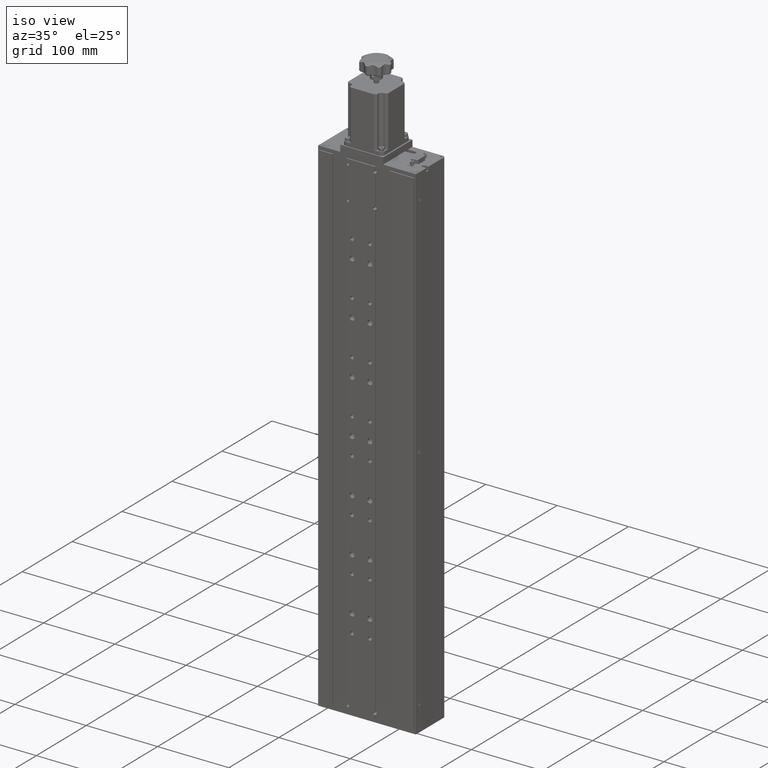
[diagram: clean part render]
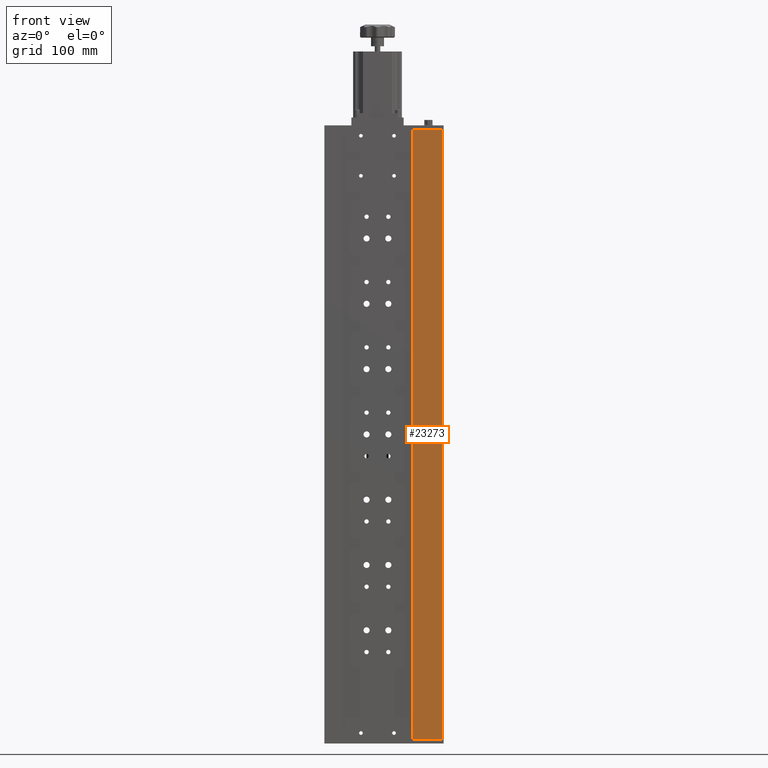
[diagram: tour spotlight — one face highlighted and labeled with its STEP entity id]
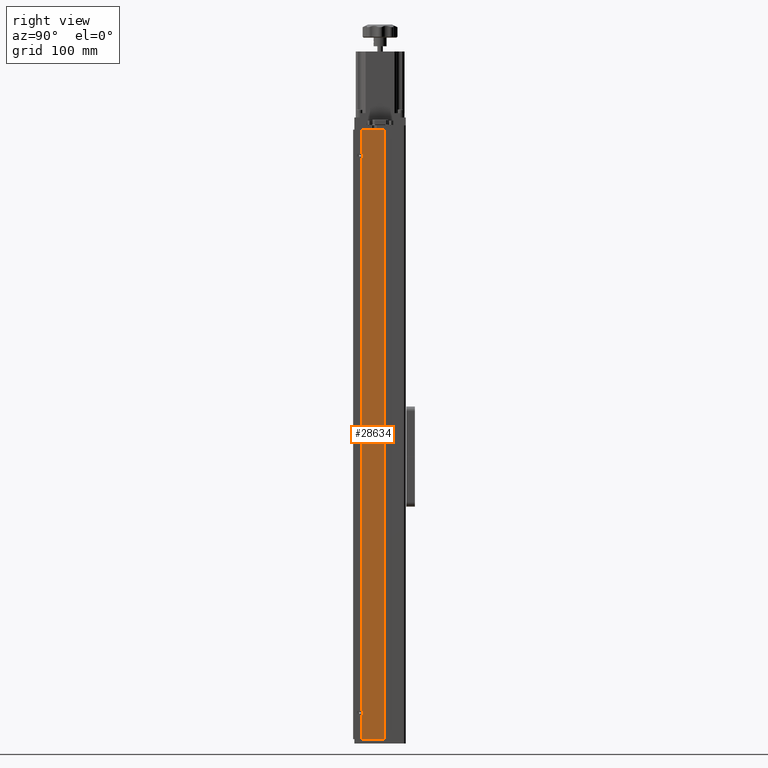
[diagram: tour spotlight — one face highlighted and labeled with its STEP entity id]
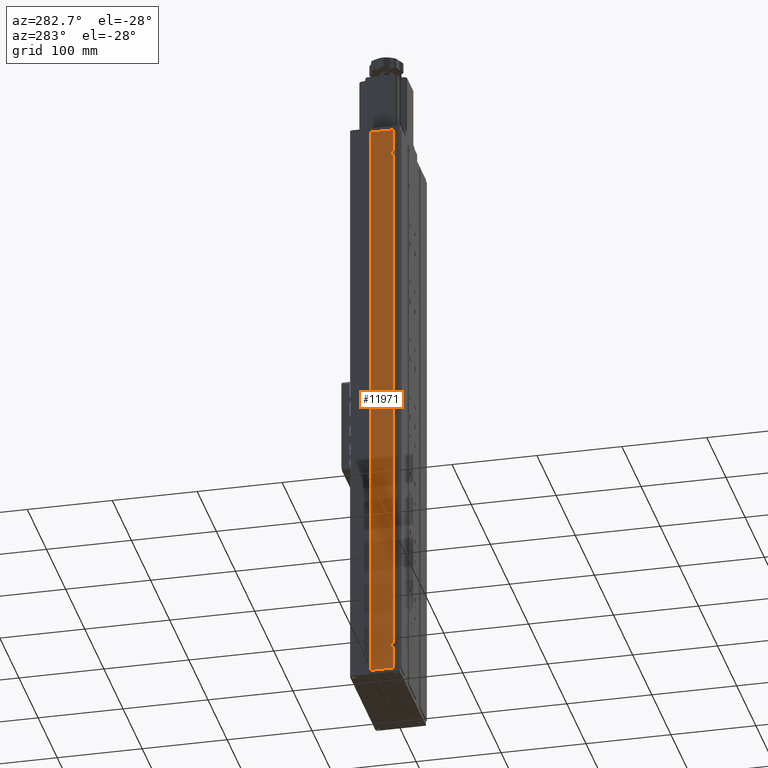
[diagram: tour spotlight — one face highlighted and labeled with its STEP entity id]
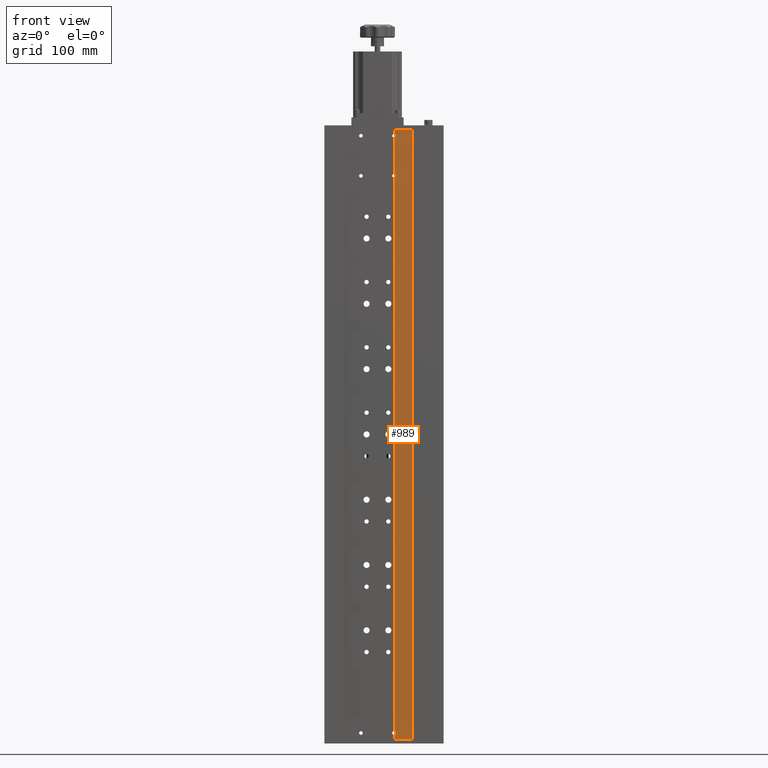
[diagram: tour spotlight — one face highlighted and labeled with its STEP entity id]
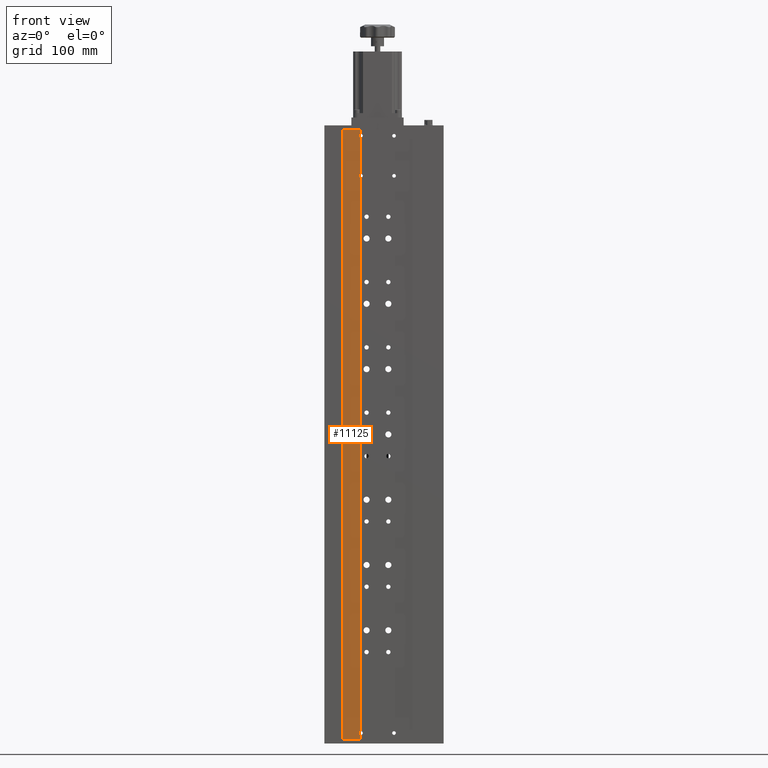
[diagram: tour spotlight — one face highlighted and labeled with its STEP entity id]
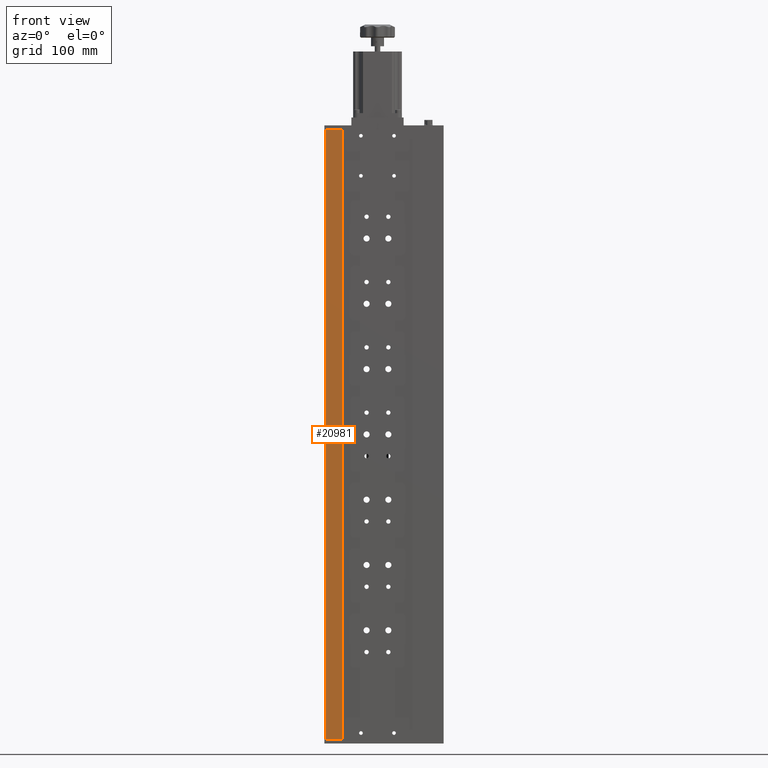
[diagram: tour spotlight — one face highlighted and labeled with its STEP entity id]
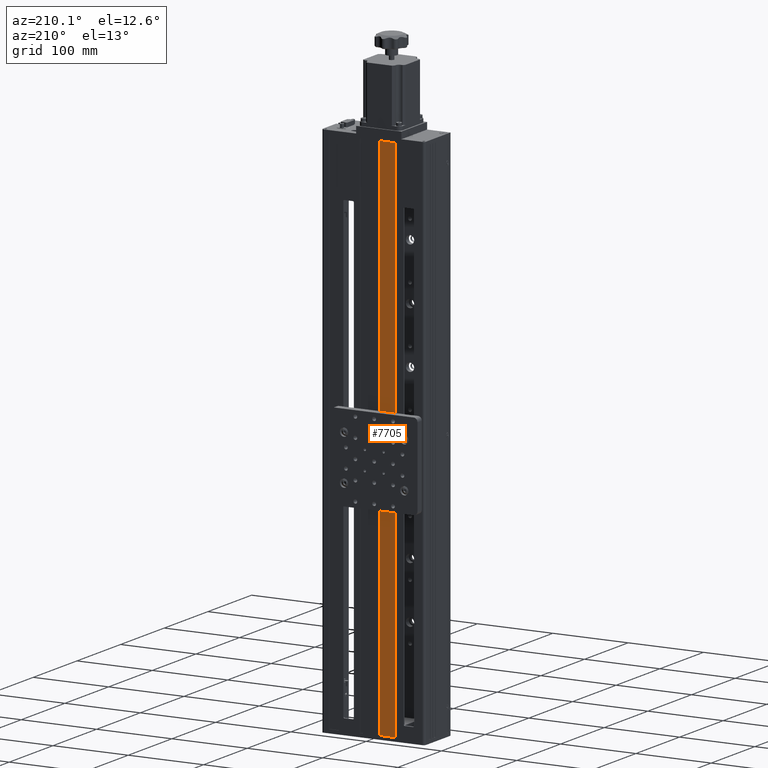
[diagram: tour spotlight — one face highlighted and labeled with its STEP entity id]
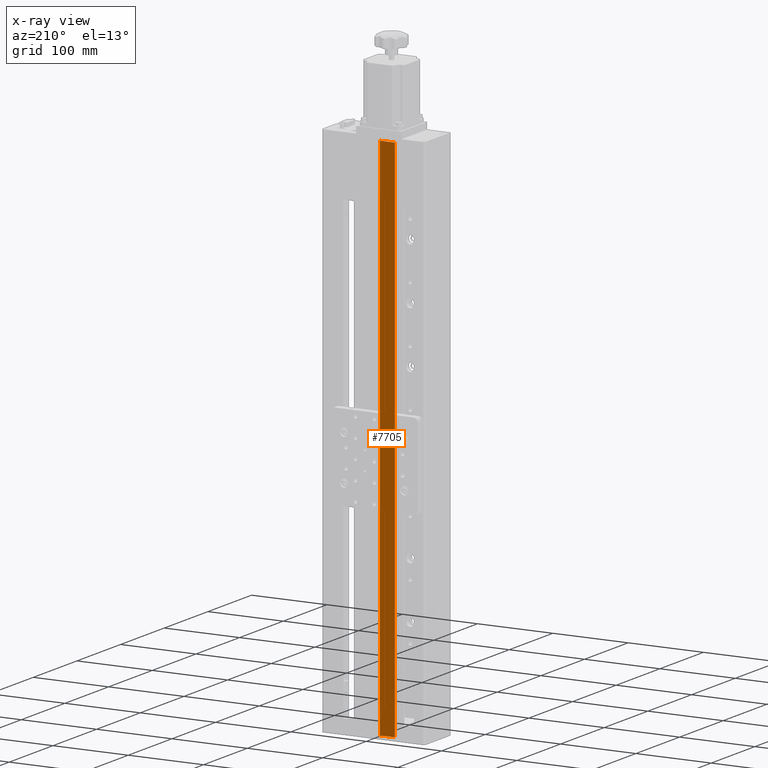
[diagram: x-ray of the same camera — body ghosted, this tour face saturated]
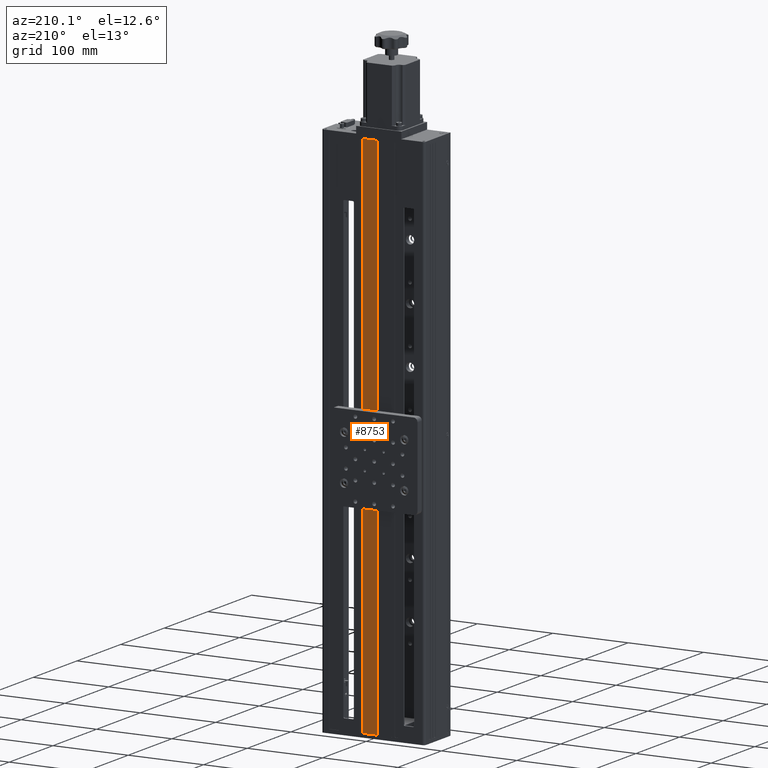
[diagram: tour spotlight — one face highlighted and labeled with its STEP entity id]
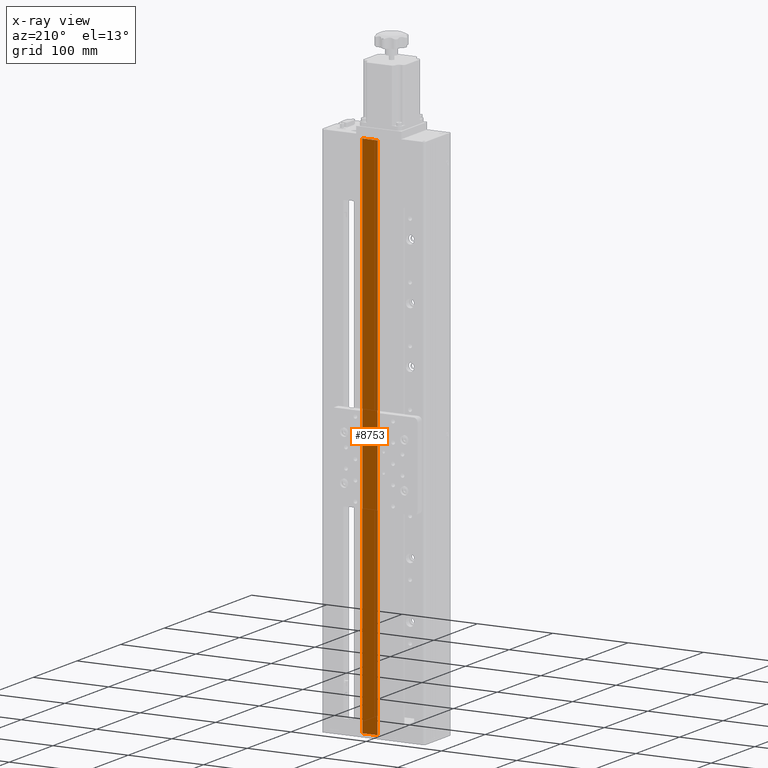
[diagram: x-ray of the same camera — body ghosted, this tour face saturated]
A machine part: a face-by-face anatomy tour. The part has 733 B-rep faces; the first image is the clean iso view, then the 8 largest visible faces are spotlighted one at a time (largest first), each with its STEP entity span.

Face 1 — front view, entity #23273. In plain terms, the highlighted planar face has unit normal (-0, 1, 0).
Definition (entity closure, byte-faithful):
#294 = CARTESIAN_POINT ( 'NONE',  ( -200.6106926832512400, -26.67012639631455100, -598.8342676332768000 ) ) ;
#1209 = CARTESIAN_POINT ( 'NONE',  ( -96.23569268325124400, -26.67012639631455100, 101.1657323667232800 ) ) ;
#3026 = DIRECTION ( 'NONE',  ( 0.0000000000000000000, 0.0000000000000000000, 1.000000000000000000 ) ) ;
#3101 = CARTESIAN_POINT ( 'NONE',  ( -96.23569268325124400, -26.67012639631455100, 101.1657323667232800 ) ) ;
#3279 = ORIENTED_EDGE ( 'NONE', *, *, #39515, .T. ) ;
#5873 = VERTEX_POINT ( 'NONE', #35107 ) ;
#8978 = ORIENTED_EDGE ( 'NONE', *, *, #13129, .T. ) ;
#10865 = DIRECTION ( 'NONE',  ( -1.000000000000000000, -3.029454718961576000E-018, -0.0000000000000000000 ) ) ;
#11520 = FACE_OUTER_BOUND ( 'NONE', #35816, .T. ) ;
#11677 = EDGE_CURVE ( 'NONE', #24877, #28009, #12525, .T. ) ;
#11954 = VECTOR ( 'NONE', #27048, 1000.000000000000000 ) ;
#12172 = VECTOR ( 'NONE', #10865, 1000.000000000000000 ) ;
#12525 = LINE ( 'NONE', #3101, #19999 ) ;
#13129 = EDGE_CURVE ( 'NONE', #5873, #33703, #21290, .T. ) ;
#13610 = ORIENTED_EDGE ( 'NONE', *, *, #11677, .F. ) ;
#15786 = AXIS2_PLACEMENT_3D ( 'NONE', #18965, #41323, #22198 ) ;
#18965 = CARTESIAN_POINT ( 'NONE',  ( -200.6106926832512400, -26.67012639631455100, -598.8342676332768000 ) ) ;
#19733 = EDGE_CURVE ( 'NONE', #5873, #24877, #37459, .T. ) ;
#19999 = VECTOR ( 'NONE', #3026, 1000.000000000000000 ) ;
#20401 = CARTESIAN_POINT ( 'NONE',  ( -200.6106926832512400, -26.67012639631455100, 101.1657323667232800 ) ) ;
#21290 = LINE ( 'NONE', #28534, #37284 ) ;
#21694 = LINE ( 'NONE', #20401, #12172 ) ;
#22198 = DIRECTION ( 'NONE',  ( -1.000000000000000000, -3.029454718961576000E-018, 0.0000000000000000000 ) ) ;
#23273 = ADVANCED_FACE ( 'NONE', ( #11520 ), #38008, .F. ) ;
#23462 = CARTESIAN_POINT ( 'NONE',  ( -96.23569268325124400, -26.67012639631455100, -598.8342676332768000 ) ) ;
#24061 = ORIENTED_EDGE ( 'NONE', *, *, #19733, .F. ) ;
#24877 = VERTEX_POINT ( 'NONE', #23462 ) ;
#27048 = DIRECTION ( 'NONE',  ( -1.000000000000000000, -3.029454718961576000E-018, -0.0000000000000000000 ) ) ;
#28009 = VERTEX_POINT ( 'NONE', #1209 ) ;
#28534 = CARTESIAN_POINT ( 'NONE',  ( -62.23569268325127300, -26.67012639631454700, -598.8342676332768000 ) ) ;
#28663 = DIRECTION ( 'NONE',  ( 0.0000000000000000000, 0.0000000000000000000, 1.000000000000000000 ) ) ;
#33703 = VERTEX_POINT ( 'NONE', #34939 ) ;
#34939 = CARTESIAN_POINT ( 'NONE',  ( -62.23569268325124400, -26.67012639631454700, 101.1657323667232800 ) ) ;
#35107 = CARTESIAN_POINT ( 'NONE',  ( -62.23569268325125800, -26.67012639631455100, -598.8342676332768000 ) ) ;
#35816 = EDGE_LOOP ( 'NONE', ( #24061, #8978, #3279, #13610 ) ) ;
#37284 = VECTOR ( 'NONE', #28663, 1000.000000000000000 ) ;
#37459 = LINE ( 'NONE', #294, #11954 ) ;
#38008 = PLANE ( 'NONE',  #15786 ) ;
#39515 = EDGE_CURVE ( 'NONE', #33703, #28009, #21694, .T. ) ;
#41323 = DIRECTION ( 'NONE',  ( -3.029454718961576000E-018, 1.000000000000000000, 0.0000000000000000000 ) ) ;

Face 2 — right view, entity #28634. In plain terms, the highlighted planar face has unit normal (-1, 0, 0).
Definition (entity closure, byte-faithful):
#355 = CARTESIAN_POINT ( 'NONE',  ( -60.23569268325124400, -17.42012639631455800, 101.1657323667232800 ) ) ;
#705 = DIRECTION ( 'NONE',  ( 0.0000000000000000000, 0.0000000000000000000, -1.000000000000000000 ) ) ;
#776 = DIRECTION ( 'NONE',  ( 0.0000000000000000000, 1.000000000000000000, 0.0000000000000000000 ) ) ;
#858 = DIRECTION ( 'NONE',  ( 1.000000000000000000, -0.0000000000000000000, -0.0000000000000000000 ) ) ;
#1002 = CARTESIAN_POINT ( 'NONE',  ( -60.23569268325124400, -18.67012639631463600, 71.16573236672324800 ) ) ;
#1665 = DIRECTION ( 'NONE',  ( 0.0000000000000000000, 1.000000000000000000, 0.0000000000000000000 ) ) ;
#1762 = VERTEX_POINT ( 'NONE', #24570 ) ;
#1858 = CARTESIAN_POINT ( 'NONE',  ( -60.23569268325124400, -17.42012639631457200, -565.9429011743164900 ) ) ;
#2003 = ORIENTED_EDGE ( 'NONE', *, *, #40113, .T. ) ;
#2581 = CARTESIAN_POINT ( 'NONE',  ( -60.23569268325124400, -17.42012639631455800, -571.7256340922368700 ) ) ;
#3218 = EDGE_CURVE ( 'NONE', #25133, #3388, #37111, .T. ) ;
#3368 = CARTESIAN_POINT ( 'NONE',  ( -60.23569268325124400, -17.42012639631455800, -245.9429011743165200 ) ) ;
#3388 = VERTEX_POINT ( 'NONE', #14030 ) ;
#3960 = AXIS2_PLACEMENT_3D ( 'NONE', #29635, #28374, #29075 ) ;
#5153 = CARTESIAN_POINT ( 'NONE',  ( -60.23569268325124400, -17.42012639631455800, 101.1657323667232800 ) ) ;
#6287 = EDGE_CURVE ( 'NONE', #25369, #13494, #24440, .T. ) ;
#6340 = EDGE_CURVE ( 'NONE', #1762, #25133, #23465, .T. ) ;
#6634 = EDGE_CURVE ( 'NONE', #39823, #23825, #21438, .T. ) ;
#6833 = CARTESIAN_POINT ( 'NONE',  ( -60.23569268325124400, -17.42012639631455800, -251.7256340922369300 ) ) ;
#8156 = DIRECTION ( 'NONE',  ( -0.0000000000000000000, -0.0000000000000000000, -1.000000000000000000 ) ) ;
#8308 = DIRECTION ( 'NONE',  ( 1.000000000000000000, -0.0000000000000000000, -0.0000000000000000000 ) ) ;
#8350 = VERTEX_POINT ( 'NONE', #2581 ) ;
#10549 = CARTESIAN_POINT ( 'NONE',  ( -60.23569268325124400, -17.42012639631455400, 68.27436590776308400 ) ) ;
#10611 = CARTESIAN_POINT ( 'NONE',  ( -60.23569268325124400, -17.42012639631455800, -598.8342676332768000 ) ) ;
#11182 = CARTESIAN_POINT ( 'NONE',  ( -60.23569268325124400, -17.42012639631455800, 101.1657323667232800 ) ) ;
#11726 = DIRECTION ( 'NONE',  ( -0.0000000000000000000, -0.0000000000000000000, -1.000000000000000000 ) ) ;
#11822 = EDGE_CURVE ( 'NONE', #39823, #40593, #39969, .T. ) ;
#13111 = ORIENTED_EDGE ( 'NONE', *, *, #21779, .T. ) ;
#13143 = DIRECTION ( 'NONE',  ( -1.000000000000000000, 0.0000000000000000000, 0.0000000000000000000 ) ) ;
#13492 = VECTOR ( 'NONE', #8156, 1000.000000000000000 ) ;
#13494 = VERTEX_POINT ( 'NONE', #26941 ) ;
#14030 = CARTESIAN_POINT ( 'NONE',  ( -60.23569268325124400, 8.829873603685506100, -598.8342676332768000 ) ) ;
#14497 = FACE_OUTER_BOUND ( 'NONE', #36426, .T. ) ;
#15514 = EDGE_CURVE ( 'NONE', #8350, #40593, #21447, .T. ) ;
#16903 = EDGE_CURVE ( 'NONE', #25369, #23825, #33852, .T. ) ;
#17176 = LINE ( 'NONE', #11182, #40679 ) ;
#17520 = CARTESIAN_POINT ( 'NONE',  ( -60.23569268325124400, -17.42012639631455800, -598.8342676332768000 ) ) ;
#18407 = AXIS2_PLACEMENT_3D ( 'NONE', #1002, #858, #705 ) ;
#19079 = AXIS2_PLACEMENT_3D ( 'NONE', #32269, #13143, #35491 ) ;
#20090 = VECTOR ( 'NONE', #27064, 1000.000000000000000 ) ;
#21438 = CIRCLE ( 'NONE', #3960, 3.149999999999986100 ) ;
#21447 = CIRCLE ( 'NONE', #21627, 3.149999999999986100 ) ;
#21627 = AXIS2_PLACEMENT_3D ( 'NONE', #27487, #8308, #30711 ) ;
#21779 = EDGE_CURVE ( 'NONE', #33913, #3388, #25538, .T. ) ;
#23075 = CARTESIAN_POINT ( 'NONE',  ( -60.23569268325124400, 8.829873603685506100, 101.1657323667232800 ) ) ;
#23465 = LINE ( 'NONE', #355, #30981 ) ;
#23825 = VERTEX_POINT ( 'NONE', #3368 ) ;
#24440 = CIRCLE ( 'NONE', #18407, 3.149999999999999900 ) ;
#24570 = CARTESIAN_POINT ( 'NONE',  ( -60.23569268325124400, -17.42012639631455800, 101.1657323667232800 ) ) ;
#24966 = CARTESIAN_POINT ( 'NONE',  ( -60.23569268325124400, 8.829873603685506100, 101.1657323667232800 ) ) ;
#25133 = VERTEX_POINT ( 'NONE', #24966 ) ;
#25338 = VECTOR ( 'NONE', #40129, 1000.000000000000000 ) ;
#25369 = VERTEX_POINT ( 'NONE', #10549 ) ;
#25538 = LINE ( 'NONE', #17520, #34055 ) ;
#26941 = CARTESIAN_POINT ( 'NONE',  ( -60.23569268325124400, -17.42012639631455800, 74.05709882568339700 ) ) ;
#27064 = DIRECTION ( 'NONE',  ( -0.0000000000000000000, -0.0000000000000000000, -1.000000000000000000 ) ) ;
#27487 = CARTESIAN_POINT ( 'NONE',  ( -60.23569268325124400, -18.67012639631456100, -568.8342676332766800 ) ) ;
#28374 = DIRECTION ( 'NONE',  ( 1.000000000000000000, -0.0000000000000000000, -0.0000000000000000000 ) ) ;
#28506 = ORIENTED_EDGE ( 'NONE', *, *, #15514, .F. ) ;
#28634 = ADVANCED_FACE ( 'NONE', ( #14497 ), #38576, .F. ) ;
#29075 = DIRECTION ( 'NONE',  ( 0.0000000000000000000, 0.0000000000000000000, -1.000000000000000000 ) ) ;
#29635 = CARTESIAN_POINT ( 'NONE',  ( -60.23569268325124400, -18.67012639631456100, -248.8342676332767100 ) ) ;
#29820 = ORIENTED_EDGE ( 'NONE', *, *, #6634, .F. ) ;
#30563 = CARTESIAN_POINT ( 'NONE',  ( -60.23569268325124400, -17.42012639631455800, 101.1657323667232800 ) ) ;
#30615 = DIRECTION ( 'NONE',  ( -0.0000000000000000000, -0.0000000000000000000, -1.000000000000000000 ) ) ;
#30711 = DIRECTION ( 'NONE',  ( 0.0000000000000000000, 0.0000000000000000000, -1.000000000000000000 ) ) ;
#30723 = ORIENTED_EDGE ( 'NONE', *, *, #6287, .F. ) ;
#30981 = VECTOR ( 'NONE', #776, 1000.000000000000000 ) ;
#32269 = CARTESIAN_POINT ( 'NONE',  ( -60.23569268325124400, -17.42012639631455800, 101.1657323667232800 ) ) ;
#32328 = EDGE_CURVE ( 'NONE', #1762, #13494, #17176, .T. ) ;
#33560 = VECTOR ( 'NONE', #11726, 1000.000000000000000 ) ;
#33601 = ORIENTED_EDGE ( 'NONE', *, *, #11822, .T. ) ;
#33852 = LINE ( 'NONE', #5153, #25338 ) ;
#33913 = VERTEX_POINT ( 'NONE', #10611 ) ;
#34055 = VECTOR ( 'NONE', #1665, 1000.000000000000000 ) ;
#34111 = CARTESIAN_POINT ( 'NONE',  ( -60.23569268325124400, -17.42012639631455800, 101.1657323667232800 ) ) ;
#34535 = LINE ( 'NONE', #34111, #33560 ) ;
#35237 = ORIENTED_EDGE ( 'NONE', *, *, #32328, .T. ) ;
#35491 = DIRECTION ( 'NONE',  ( 0.0000000000000000000, 0.0000000000000000000, 1.000000000000000000 ) ) ;
#35718 = ORIENTED_EDGE ( 'NONE', *, *, #6340, .F. ) ;
#36426 = EDGE_LOOP ( 'NONE', ( #33601, #28506, #2003, #13111, #37991, #35718, #35237, #30723, #38298, #29820 ) ) ;
#37111 = LINE ( 'NONE', #23075, #20090 ) ;
#37991 = ORIENTED_EDGE ( 'NONE', *, *, #3218, .F. ) ;
#38298 = ORIENTED_EDGE ( 'NONE', *, *, #16903, .T. ) ;
#38576 = PLANE ( 'NONE',  #19079 ) ;
#39823 = VERTEX_POINT ( 'NONE', #6833 ) ;
#39969 = LINE ( 'NONE', #30563, #13492 ) ;
#40113 = EDGE_CURVE ( 'NONE', #8350, #33913, #34535, .T. ) ;
#40129 = DIRECTION ( 'NONE',  ( -0.0000000000000000000, -0.0000000000000000000, -1.000000000000000000 ) ) ;
#40593 = VERTEX_POINT ( 'NONE', #1858 ) ;
#40679 = VECTOR ( 'NONE', #30615, 1000.000000000000000 ) ;

Face 3 — auxiliary view, entity #11971. In plain terms, the highlighted planar face has unit normal (-1, 0, 0).
Definition (entity closure, byte-faithful):
#440 = EDGE_CURVE ( 'NONE', #18899, #10316, #3173, .T. ) ;
#797 = EDGE_CURVE ( 'NONE', #35476, #28081, #12188, .T. ) ;
#1048 = DIRECTION ( 'NONE',  ( 0.0000000000000000000, 0.0000000000000000000, 1.000000000000000000 ) ) ;
#1086 = AXIS2_PLACEMENT_3D ( 'NONE', #39400, #20229, #1048 ) ;
#1294 = CARTESIAN_POINT ( 'NONE',  ( -197.2356926832512400, -17.42012639631455800, 101.1657323667232800 ) ) ;
#1724 = EDGE_CURVE ( 'NONE', #37724, #10558, #37404, .T. ) ;
#2480 = DIRECTION ( 'NONE',  ( -1.000000000000000000, -0.0000000000000000000, -0.0000000000000000000 ) ) ;
#2747 = VECTOR ( 'NONE', #8879, 1000.000000000000000 ) ;
#2893 = CARTESIAN_POINT ( 'NONE',  ( -197.2356926832513000, -17.42012639631455100, -571.7256340922368700 ) ) ;
#3173 = LINE ( 'NONE', #7150, #11714 ) ;
#3551 = LINE ( 'NONE', #7242, #12086 ) ;
#3856 = ORIENTED_EDGE ( 'NONE', *, *, #40181, .F. ) ;
#4079 = DIRECTION ( 'NONE',  ( -1.000000000000000000, -0.0000000000000000000, -0.0000000000000000000 ) ) ;
#4228 = AXIS2_PLACEMENT_3D ( 'NONE', #15058, #14928, #14644 ) ;
#5051 = VECTOR ( 'NONE', #10555, 1000.000000000000000 ) ;
#5656 = CARTESIAN_POINT ( 'NONE',  ( -197.2356926832512400, -17.42012639631455800, -598.8342676332768000 ) ) ;
#6546 = AXIS2_PLACEMENT_3D ( 'NONE', #21692, #2480, #24861 ) ;
#7150 = CARTESIAN_POINT ( 'NONE',  ( -197.2356926832512400, -17.42012639631455800, 101.1657323667232800 ) ) ;
#7242 = CARTESIAN_POINT ( 'NONE',  ( -197.2356926832512400, -17.42012639631455800, 101.1657323667232800 ) ) ;
#7582 = ORIENTED_EDGE ( 'NONE', *, *, #40664, .F. ) ;
#8018 = VECTOR ( 'NONE', #23258, 1000.000000000000000 ) ;
#8879 = DIRECTION ( 'NONE',  ( 0.0000000000000000000, 1.000000000000000000, 0.0000000000000000000 ) ) ;
#8918 = ORIENTED_EDGE ( 'NONE', *, *, #440, .F. ) ;
#10166 = VERTEX_POINT ( 'NONE', #34925 ) ;
#10316 = VERTEX_POINT ( 'NONE', #31954 ) ;
#10555 = DIRECTION ( 'NONE',  ( -0.0000000000000000000, -0.0000000000000000000, -1.000000000000000000 ) ) ;
#10558 = VERTEX_POINT ( 'NONE', #27662 ) ;
#10921 = DIRECTION ( 'NONE',  ( -0.0000000000000000000, -0.0000000000000000000, -1.000000000000000000 ) ) ;
#11510 = CARTESIAN_POINT ( 'NONE',  ( -197.2356926832513000, -17.42012639631455800, 68.27436590776308400 ) ) ;
#11714 = VECTOR ( 'NONE', #10921, 1000.000000000000000 ) ;
#11820 = EDGE_LOOP ( 'NONE', ( #3856, #30414, #20910, #15433, #32734, #35379, #30143, #41518, #7582, #8918 ) ) ;
#11900 = VECTOR ( 'NONE', #20512, 1000.000000000000000 ) ;
#11971 = ADVANCED_FACE ( 'NONE', ( #19427 ), #21209, .T. ) ;
#12086 = VECTOR ( 'NONE', #26449, 1000.000000000000000 ) ;
#12188 = CIRCLE ( 'NONE', #20718, 3.149999999999986100 ) ;
#14531 = EDGE_CURVE ( 'NONE', #31768, #35476, #3551, .T. ) ;
#14555 = CARTESIAN_POINT ( 'NONE',  ( -197.2356926832513000, -17.42012639631455800, -251.7256340922369300 ) ) ;
#14644 = DIRECTION ( 'NONE',  ( 0.0000000000000000000, 0.0000000000000000000, 1.000000000000000000 ) ) ;
#14928 = DIRECTION ( 'NONE',  ( -1.000000000000000000, 0.0000000000000000000, 0.0000000000000000000 ) ) ;
#15058 = CARTESIAN_POINT ( 'NONE',  ( -197.2356926832512400, -17.42012639631455800, 101.1657323667232800 ) ) ;
#15433 = ORIENTED_EDGE ( 'NONE', *, *, #14531, .F. ) ;
#16744 = EDGE_CURVE ( 'NONE', #37724, #10166, #41395, .T. ) ;
#16835 = CARTESIAN_POINT ( 'NONE',  ( -197.2356926832512400, -17.42012639631455800, 101.1657323667232800 ) ) ;
#17209 = VERTEX_POINT ( 'NONE', #29739 ) ;
#18899 = VERTEX_POINT ( 'NONE', #2893 ) ;
#18952 = VERTEX_POINT ( 'NONE', #25430 ) ;
#19427 = FACE_OUTER_BOUND ( 'NONE', #11820, .T. ) ;
#19811 = LINE ( 'NONE', #5656, #2747 ) ;
#20229 = DIRECTION ( 'NONE',  ( -1.000000000000000000, -0.0000000000000000000, -0.0000000000000000000 ) ) ;
#20277 = CARTESIAN_POINT ( 'NONE',  ( -197.2356926832512400, -17.42012639631455800, 101.1657323667232800 ) ) ;
#20512 = DIRECTION ( 'NONE',  ( 0.0000000000000000000, 1.000000000000000000, 0.0000000000000000000 ) ) ;
#20718 = AXIS2_PLACEMENT_3D ( 'NONE', #33170, #4079, #34524 ) ;
#20910 = ORIENTED_EDGE ( 'NONE', *, *, #797, .F. ) ;
#21209 = PLANE ( 'NONE',  #4228 ) ;
#21692 = CARTESIAN_POINT ( 'NONE',  ( -197.2356926832513000, -18.67012639631456100, -568.8342676332766800 ) ) ;
#21711 = EDGE_CURVE ( 'NONE', #28081, #17209, #25054, .T. ) ;
#22099 = LINE ( 'NONE', #29710, #5051 ) ;
#22476 = CIRCLE ( 'NONE', #1086, 3.149999999999999900 ) ;
#23258 = DIRECTION ( 'NONE',  ( -0.0000000000000000000, -0.0000000000000000000, -1.000000000000000000 ) ) ;
#24362 = VECTOR ( 'NONE', #29941, 1000.000000000000000 ) ;
#24861 = DIRECTION ( 'NONE',  ( 0.0000000000000000000, 0.0000000000000000000, 1.000000000000000000 ) ) ;
#25054 = LINE ( 'NONE', #16835, #8018 ) ;
#25353 = CARTESIAN_POINT ( 'NONE',  ( -197.2356926832512400, -17.42012639631455800, 101.1657323667232800 ) ) ;
#25430 = CARTESIAN_POINT ( 'NONE',  ( -197.2356926832512400, 8.829873603685451000, -598.8342676332768000 ) ) ;
#26449 = DIRECTION ( 'NONE',  ( -0.0000000000000000000, -0.0000000000000000000, -1.000000000000000000 ) ) ;
#27050 = EDGE_CURVE ( 'NONE', #10558, #18952, #22099, .T. ) ;
#27662 = CARTESIAN_POINT ( 'NONE',  ( -197.2356926832512400, 8.829873603685451000, 101.1657323667232800 ) ) ;
#28081 = VERTEX_POINT ( 'NONE', #14555 ) ;
#28778 = EDGE_CURVE ( 'NONE', #10166, #31768, #22476, .T. ) ;
#29710 = CARTESIAN_POINT ( 'NONE',  ( -197.2356926832512400, 8.829873603685451000, 101.1657323667232800 ) ) ;
#29739 = CARTESIAN_POINT ( 'NONE',  ( -197.2356926832513000, -17.42012639631455100, -565.9429011743164900 ) ) ;
#29941 = DIRECTION ( 'NONE',  ( -0.0000000000000000000, -0.0000000000000000000, -1.000000000000000000 ) ) ;
#30143 = ORIENTED_EDGE ( 'NONE', *, *, #1724, .T. ) ;
#30414 = ORIENTED_EDGE ( 'NONE', *, *, #21711, .F. ) ;
#31768 = VERTEX_POINT ( 'NONE', #11510 ) ;
#31954 = CARTESIAN_POINT ( 'NONE',  ( -197.2356926832512400, -17.42012639631455800, -598.8342676332768000 ) ) ;
#32734 = ORIENTED_EDGE ( 'NONE', *, *, #28778, .F. ) ;
#33170 = CARTESIAN_POINT ( 'NONE',  ( -197.2356926832513000, -18.67012639631456100, -248.8342676332767100 ) ) ;
#34089 = CARTESIAN_POINT ( 'NONE',  ( -197.2356926832513000, -17.42012639631455800, -245.9429011743165200 ) ) ;
#34524 = DIRECTION ( 'NONE',  ( 0.0000000000000000000, 0.0000000000000000000, 1.000000000000000000 ) ) ;
#34925 = CARTESIAN_POINT ( 'NONE',  ( -197.2356926832513000, -17.42012639631455800, 74.05709882568339700 ) ) ;
#35379 = ORIENTED_EDGE ( 'NONE', *, *, #16744, .F. ) ;
#35476 = VERTEX_POINT ( 'NONE', #34089 ) ;
#37404 = LINE ( 'NONE', #1294, #11900 ) ;
#37724 = VERTEX_POINT ( 'NONE', #25353 ) ;
#39400 = CARTESIAN_POINT ( 'NONE',  ( -197.2356926832513000, -18.67012639631463600, 71.16573236672324800 ) ) ;
#40045 = CIRCLE ( 'NONE', #6546, 3.149999999999986100 ) ;
#40181 = EDGE_CURVE ( 'NONE', #17209, #18899, #40045, .T. ) ;
#40664 = EDGE_CURVE ( 'NONE', #10316, #18952, #19811, .T. ) ;
#41395 = LINE ( 'NONE', #20277, #24362 ) ;
#41518 = ORIENTED_EDGE ( 'NONE', *, *, #27050, .T. ) ;

Face 4 — front view, entity #989. In plain terms, the highlighted planar face has unit normal (0, 1, 0).
Definition (entity closure, byte-faithful):
#234 = DIRECTION ( 'NONE',  ( 0.0000000000000000000, 0.0000000000000000000, 1.000000000000000000 ) ) ;
#856 = VERTEX_POINT ( 'NONE', #29069 ) ;
#989 = ADVANCED_FACE ( 'NONE', ( #39178 ), #4615, .F. ) ;
#1355 = EDGE_CURVE ( 'NONE', #4603, #856, #33506, .T. ) ;
#1776 = LINE ( 'NONE', #11462, #17838 ) ;
#1917 = ORIENTED_EDGE ( 'NONE', *, *, #16856, .F. ) ;
#2132 = VECTOR ( 'NONE', #29015, 1000.000000000000000 ) ;
#2876 = VERTEX_POINT ( 'NONE', #31253 ) ;
#3007 = DIRECTION ( 'NONE',  ( 0.0000000000000000000, 1.000000000000000000, 0.0000000000000000000 ) ) ;
#3129 = CARTESIAN_POINT ( 'NONE',  ( -116.2356926832512400, -25.17012639631454700, 50.01235089798522200 ) ) ;
#3150 = LINE ( 'NONE', #29277, #2132 ) ;
#3172 = CIRCLE ( 'NONE', #32764, 2.099999999999990800 ) ;
#3269 = ORIENTED_EDGE ( 'NONE', *, *, #17803, .T. ) ;
#3913 = DIRECTION ( 'NONE',  ( 1.000000000000000000, 0.0000000000000000000, 0.0000000000000000000 ) ) ;
#3949 = CARTESIAN_POINT ( 'NONE',  ( -116.2356926832512400, -25.17012639631454700, -593.6808861645386100 ) ) ;
#4360 = CIRCLE ( 'NONE', #36759, 2.099999999999990800 ) ;
#4454 = EDGE_CURVE ( 'NONE', #31462, #23992, #9749, .T. ) ;
#4603 = VERTEX_POINT ( 'NONE', #3129 ) ;
#4615 = PLANE ( 'NONE',  #19898 ) ;
#4757 = CARTESIAN_POINT ( 'NONE',  ( -96.23569268325124400, -25.17012639631454700, 101.1657323667232800 ) ) ;
#5647 = CARTESIAN_POINT ( 'NONE',  ( -176.2356926832512700, -25.17012639631454700, 101.1657323667232800 ) ) ;
#6544 = CARTESIAN_POINT ( 'NONE',  ( -117.2356926832512400, -25.17012639631454700, -591.8342676332765700 ) ) ;
#6918 = AXIS2_PLACEMENT_3D ( 'NONE', #31147, #12005, #34344 ) ;
#8964 = VECTOR ( 'NONE', #37439, 1000.000000000000000 ) ;
#9005 = EDGE_CURVE ( 'NONE', #41199, #36633, #3150, .T. ) ;
#9362 = EDGE_CURVE ( 'NONE', #41199, #14491, #28191, .T. ) ;
#9371 = ORIENTED_EDGE ( 'NONE', *, *, #1355, .F. ) ;
#9749 = LINE ( 'NONE', #5647, #25739 ) ;
#9769 = DIRECTION ( 'NONE',  ( 0.0000000000000000000, 0.0000000000000000000, 1.000000000000000000 ) ) ;
#9827 = EDGE_LOOP ( 'NONE', ( #19015, #32341, #20077, #38095, #36907, #32963, #1917, #3269, #9371, #39937 ) ) ;
#11462 = CARTESIAN_POINT ( 'NONE',  ( -116.2356926832512400, -25.17012639631454700, -638.9123164879802100 ) ) ;
#11634 = VECTOR ( 'NONE', #18172, 1000.000000000000000 ) ;
#12005 = DIRECTION ( 'NONE',  ( 0.0000000000000000000, 1.000000000000000000, 0.0000000000000000000 ) ) ;
#12790 = CARTESIAN_POINT ( 'NONE',  ( -116.2356926832512400, -25.17012639631454700, -598.8342676332768000 ) ) ;
#12811 = VERTEX_POINT ( 'NONE', #36404 ) ;
#14491 = VERTEX_POINT ( 'NONE', #3949 ) ;
#14694 = DIRECTION ( 'NONE',  ( 0.0000000000000000000, 0.0000000000000000000, 1.000000000000000000 ) ) ;
#16112 = CARTESIAN_POINT ( 'NONE',  ( -116.2356926832512400, -25.17012639631454700, -638.9123164879802100 ) ) ;
#16856 = EDGE_CURVE ( 'NONE', #2876, #31462, #1776, .T. ) ;
#17803 = EDGE_CURVE ( 'NONE', #2876, #856, #41254, .T. ) ;
#17838 = VECTOR ( 'NONE', #14694, 1000.000000000000000 ) ;
#18172 = DIRECTION ( 'NONE',  ( -0.0000000000000000000, -0.0000000000000000000, -1.000000000000000000 ) ) ;
#18192 = LINE ( 'NONE', #16112, #34211 ) ;
#19015 = ORIENTED_EDGE ( 'NONE', *, *, #31995, .F. ) ;
#19699 = VECTOR ( 'NONE', #28977, 1000.000000000000000 ) ;
#19898 = AXIS2_PLACEMENT_3D ( 'NONE', #30346, #37204, #37661 ) ;
#20040 = VERTEX_POINT ( 'NONE', #31528 ) ;
#20077 = ORIENTED_EDGE ( 'NONE', *, *, #9362, .F. ) ;
#22221 = CARTESIAN_POINT ( 'NONE',  ( -117.2356926832512400, -25.17012639631454700, 48.16573236672327600 ) ) ;
#23992 = VERTEX_POINT ( 'NONE', #4757 ) ;
#24285 = EDGE_CURVE ( 'NONE', #12811, #14491, #4360, .T. ) ;
#25407 = DIRECTION ( 'NONE',  ( 0.0000000000000000000, 0.0000000000000000000, 1.000000000000000000 ) ) ;
#25739 = VECTOR ( 'NONE', #3913, 1000.000000000000000 ) ;
#27693 = CARTESIAN_POINT ( 'NONE',  ( -96.23569268325124400, -25.17012639631454700, -598.8342676332768000 ) ) ;
#28191 = LINE ( 'NONE', #29540, #19699 ) ;
#28938 = DIRECTION ( 'NONE',  ( 0.0000000000000000000, 1.000000000000000000, 0.0000000000000000000 ) ) ;
#28977 = DIRECTION ( 'NONE',  ( 0.0000000000000000000, 0.0000000000000000000, 1.000000000000000000 ) ) ;
#29015 = DIRECTION ( 'NONE',  ( 1.000000000000000000, 0.0000000000000000000, 0.0000000000000000000 ) ) ;
#29069 = CARTESIAN_POINT ( 'NONE',  ( -116.2356926832512400, -25.17012639631454700, 92.31911383546132300 ) ) ;
#29277 = CARTESIAN_POINT ( 'NONE',  ( -176.2356926832512700, -25.17012639631454700, -598.8342676332768000 ) ) ;
#29540 = CARTESIAN_POINT ( 'NONE',  ( -116.2356926832512400, -25.17012639631454700, -638.9123164879802100 ) ) ;
#30346 = CARTESIAN_POINT ( 'NONE',  ( -176.2356926832512700, -25.17012639631454700, 101.1657323667232800 ) ) ;
#31147 = CARTESIAN_POINT ( 'NONE',  ( -117.2356926832512400, -25.17012639631454700, 94.16573236672326200 ) ) ;
#31253 = CARTESIAN_POINT ( 'NONE',  ( -116.2356926832512400, -25.17012639631454700, 96.01235089798515800 ) ) ;
#31462 = VERTEX_POINT ( 'NONE', #35153 ) ;
#31528 = CARTESIAN_POINT ( 'NONE',  ( -116.2356926832512400, -25.17012639631454700, 46.31911383546133700 ) ) ;
#31995 = EDGE_CURVE ( 'NONE', #12811, #20040, #18192, .T. ) ;
#32341 = ORIENTED_EDGE ( 'NONE', *, *, #24285, .T. ) ;
#32764 = AXIS2_PLACEMENT_3D ( 'NONE', #22221, #3007, #25407 ) ;
#32963 = ORIENTED_EDGE ( 'NONE', *, *, #4454, .F. ) ;
#33506 = LINE ( 'NONE', #35463, #8964 ) ;
#34211 = VECTOR ( 'NONE', #234, 1000.000000000000000 ) ;
#34344 = DIRECTION ( 'NONE',  ( 0.0000000000000000000, 0.0000000000000000000, 1.000000000000000000 ) ) ;
#35153 = CARTESIAN_POINT ( 'NONE',  ( -116.2356926832512600, -25.17012639631454700, 101.1657323667232800 ) ) ;
#35463 = CARTESIAN_POINT ( 'NONE',  ( -116.2356926832512400, -25.17012639631454700, -638.9123164879802100 ) ) ;
#36164 = LINE ( 'NONE', #37335, #11634 ) ;
#36404 = CARTESIAN_POINT ( 'NONE',  ( -116.2356926832512400, -25.17012639631454700, -589.9876491020147600 ) ) ;
#36633 = VERTEX_POINT ( 'NONE', #27693 ) ;
#36759 = AXIS2_PLACEMENT_3D ( 'NONE', #6544, #28938, #9769 ) ;
#36907 = ORIENTED_EDGE ( 'NONE', *, *, #41544, .F. ) ;
#37204 = DIRECTION ( 'NONE',  ( 0.0000000000000000000, 1.000000000000000000, 0.0000000000000000000 ) ) ;
#37227 = EDGE_CURVE ( 'NONE', #4603, #20040, #3172, .T. ) ;
#37335 = CARTESIAN_POINT ( 'NONE',  ( -96.23569268325124400, -25.17012639631454700, 101.1657323667232800 ) ) ;
#37439 = DIRECTION ( 'NONE',  ( 0.0000000000000000000, 0.0000000000000000000, 1.000000000000000000 ) ) ;
#37661 = DIRECTION ( 'NONE',  ( 0.0000000000000000000, -0.0000000000000000000, 1.000000000000000000 ) ) ;
#38095 = ORIENTED_EDGE ( 'NONE', *, *, #9005, .T. ) ;
#39178 = FACE_OUTER_BOUND ( 'NONE', #9827, .T. ) ;
#39937 = ORIENTED_EDGE ( 'NONE', *, *, #37227, .T. ) ;
#41199 = VERTEX_POINT ( 'NONE', #12790 ) ;
#41254 = CIRCLE ( 'NONE', #6918, 2.099999999999990800 ) ;
#41544 = EDGE_CURVE ( 'NONE', #23992, #36633, #36164, .T. ) ;

Face 5 — front view, entity #11125. In plain terms, the highlighted planar face has unit normal (0, 1, 0).
Definition (entity closure, byte-faithful):
#31 = VERTEX_POINT ( 'NONE', #17732 ) ;
#415 = AXIS2_PLACEMENT_3D ( 'NONE', #13626, #13579, #13526 ) ;
#633 = DIRECTION ( 'NONE',  ( 0.0000000000000000000, 0.0000000000000000000, 1.000000000000000000 ) ) ;
#761 = ORIENTED_EDGE ( 'NONE', *, *, #14077, .T. ) ;
#998 = EDGE_CURVE ( 'NONE', #31586, #29495, #10643, .T. ) ;
#1485 = CARTESIAN_POINT ( 'NONE',  ( -156.2356926832512400, -25.17012639631454700, -638.9123164879802100 ) ) ;
#1561 = CARTESIAN_POINT ( 'NONE',  ( -156.2356926832512400, -25.17012639631454700, 50.01235089798522200 ) ) ;
#1828 = VERTEX_POINT ( 'NONE', #4890 ) ;
#2475 = VECTOR ( 'NONE', #11469, 1000.000000000000000 ) ;
#3106 = ORIENTED_EDGE ( 'NONE', *, *, #33868, .T. ) ;
#3136 = CARTESIAN_POINT ( 'NONE',  ( -156.2356926832512400, -25.17012639631454700, 96.01235089798521500 ) ) ;
#4251 = EDGE_CURVE ( 'NONE', #35706, #14270, #18286, .T. ) ;
#4530 = CARTESIAN_POINT ( 'NONE',  ( -176.2356926832512700, -25.17012639631454700, -598.8342676332768000 ) ) ;
#4823 = CARTESIAN_POINT ( 'NONE',  ( -156.2356926832512400, -25.17012639631454700, -638.9123164879802100 ) ) ;
#4890 = CARTESIAN_POINT ( 'NONE',  ( -156.2356926832512400, -25.17012639631454700, -593.6808861645386100 ) ) ;
#5373 = DIRECTION ( 'NONE',  ( 0.0000000000000000000, 0.0000000000000000000, 1.000000000000000000 ) ) ;
#5790 = ORIENTED_EDGE ( 'NONE', *, *, #23528, .T. ) ;
#5892 = CARTESIAN_POINT ( 'NONE',  ( -156.2356926832512400, -25.17012639631454700, 101.1657323667232800 ) ) ;
#6427 = EDGE_CURVE ( 'NONE', #1828, #41460, #39956, .T. ) ;
#7634 = CARTESIAN_POINT ( 'NONE',  ( -156.2356926832512400, -25.17012639631454700, -638.9123164879802100 ) ) ;
#7707 = DIRECTION ( 'NONE',  ( 0.0000000000000000000, 0.0000000000000000000, 1.000000000000000000 ) ) ;
#8340 = ORIENTED_EDGE ( 'NONE', *, *, #19785, .T. ) ;
#8771 = VECTOR ( 'NONE', #15932, 1000.000000000000000 ) ;
#9317 = AXIS2_PLACEMENT_3D ( 'NONE', #39002, #19836, #633 ) ;
#10643 = CIRCLE ( 'NONE', #17748, 2.099999999999990800 ) ;
#11011 = LINE ( 'NONE', #17749, #2475 ) ;
#11125 = ADVANCED_FACE ( 'NONE', ( #26579 ), #13903, .F. ) ;
#11179 = AXIS2_PLACEMENT_3D ( 'NONE', #22392, #23732, #13856 ) ;
#11469 = DIRECTION ( 'NONE',  ( -0.0000000000000000000, -0.0000000000000000000, -1.000000000000000000 ) ) ;
#11799 = LINE ( 'NONE', #12733, #8771 ) ;
#11811 = CARTESIAN_POINT ( 'NONE',  ( -176.2356926832512700, -25.17012639631454700, -598.8342676332768000 ) ) ;
#12733 = CARTESIAN_POINT ( 'NONE',  ( -176.2356926832512700, -25.17012639631454700, 101.1657323667232800 ) ) ;
#13526 = DIRECTION ( 'NONE',  ( 0.0000000000000000000, -0.0000000000000000000, 1.000000000000000000 ) ) ;
#13579 = DIRECTION ( 'NONE',  ( 0.0000000000000000000, 1.000000000000000000, 0.0000000000000000000 ) ) ;
#13626 = CARTESIAN_POINT ( 'NONE',  ( -176.2356926832512700, -25.17012639631454700, 101.1657323667232800 ) ) ;
#13756 = CARTESIAN_POINT ( 'NONE',  ( -156.2356926832512400, -25.17012639631454700, 92.31911383546138000 ) ) ;
#13856 = DIRECTION ( 'NONE',  ( 0.0000000000000000000, 0.0000000000000000000, 1.000000000000000000 ) ) ;
#13903 = PLANE ( 'NONE',  #415 ) ;
#14077 = EDGE_CURVE ( 'NONE', #37565, #31, #37183, .T. ) ;
#14126 = ORIENTED_EDGE ( 'NONE', *, *, #998, .T. ) ;
#14266 = CARTESIAN_POINT ( 'NONE',  ( -176.2356926832512700, -25.17012639631454700, 101.1657323667232800 ) ) ;
#14270 = VERTEX_POINT ( 'NONE', #5892 ) ;
#14448 = CARTESIAN_POINT ( 'NONE',  ( -156.2356926832512400, -25.17012639631454700, -589.9876491020147600 ) ) ;
#15411 = VECTOR ( 'NONE', #36653, 1000.000000000000000 ) ;
#15932 = DIRECTION ( 'NONE',  ( 1.000000000000000000, 0.0000000000000000000, 0.0000000000000000000 ) ) ;
#16909 = DIRECTION ( 'NONE',  ( 0.0000000000000000000, 0.0000000000000000000, 1.000000000000000000 ) ) ;
#17732 = CARTESIAN_POINT ( 'NONE',  ( -156.2356926832512400, -25.17012639631454700, -598.8342676332768000 ) ) ;
#17748 = AXIS2_PLACEMENT_3D ( 'NONE', #21705, #31903, #16909 ) ;
#17749 = CARTESIAN_POINT ( 'NONE',  ( -176.2356926832512700, -25.17012639631454700, 101.1657323667232800 ) ) ;
#18286 = LINE ( 'NONE', #7634, #34305 ) ;
#19785 = EDGE_CURVE ( 'NONE', #41460, #31586, #27448, .T. ) ;
#19836 = DIRECTION ( 'NONE',  ( 0.0000000000000000000, 1.000000000000000000, 0.0000000000000000000 ) ) ;
#20162 = VECTOR ( 'NONE', #26888, 1000.000000000000000 ) ;
#21705 = CARTESIAN_POINT ( 'NONE',  ( -155.2356926832512400, -25.17012639631454700, 48.16573236672327600 ) ) ;
#22392 = CARTESIAN_POINT ( 'NONE',  ( -155.2356926832512400, -25.17012639631454700, -591.8342676332765700 ) ) ;
#23528 = EDGE_CURVE ( 'NONE', #31, #1828, #41492, .T. ) ;
#23732 = DIRECTION ( 'NONE',  ( 0.0000000000000000000, 1.000000000000000000, 0.0000000000000000000 ) ) ;
#23807 = CARTESIAN_POINT ( 'NONE',  ( -156.2356926832512400, -25.17012639631454700, -638.9123164879802100 ) ) ;
#23826 = EDGE_LOOP ( 'NONE', ( #5790, #36667, #8340, #14126, #40746, #3106, #24358, #33434, #34859, #761 ) ) ;
#24358 = ORIENTED_EDGE ( 'NONE', *, *, #4251, .T. ) ;
#24658 = EDGE_CURVE ( 'NONE', #35321, #14270, #11799, .T. ) ;
#25474 = VECTOR ( 'NONE', #7707, 1000.000000000000000 ) ;
#26579 = FACE_OUTER_BOUND ( 'NONE', #23826, .T. ) ;
#26741 = CIRCLE ( 'NONE', #9317, 2.099999999999990800 ) ;
#26888 = DIRECTION ( 'NONE',  ( 1.000000000000000000, 0.0000000000000000000, 0.0000000000000000000 ) ) ;
#27448 = LINE ( 'NONE', #4823, #35448 ) ;
#28338 = EDGE_CURVE ( 'NONE', #35321, #37565, #11011, .T. ) ;
#29495 = VERTEX_POINT ( 'NONE', #1561 ) ;
#29698 = CARTESIAN_POINT ( 'NONE',  ( -156.2356926832512400, -25.17012639631454700, 46.31911383546133700 ) ) ;
#29861 = VERTEX_POINT ( 'NONE', #13756 ) ;
#30420 = DIRECTION ( 'NONE',  ( 0.0000000000000000000, 0.0000000000000000000, 1.000000000000000000 ) ) ;
#31586 = VERTEX_POINT ( 'NONE', #29698 ) ;
#31903 = DIRECTION ( 'NONE',  ( 0.0000000000000000000, 1.000000000000000000, 0.0000000000000000000 ) ) ;
#32421 = LINE ( 'NONE', #1485, #15411 ) ;
#33434 = ORIENTED_EDGE ( 'NONE', *, *, #24658, .F. ) ;
#33868 = EDGE_CURVE ( 'NONE', #29861, #35706, #26741, .T. ) ;
#34305 = VECTOR ( 'NONE', #5373, 1000.000000000000000 ) ;
#34859 = ORIENTED_EDGE ( 'NONE', *, *, #28338, .T. ) ;
#35321 = VERTEX_POINT ( 'NONE', #14266 ) ;
#35385 = EDGE_CURVE ( 'NONE', #29495, #29861, #32421, .T. ) ;
#35448 = VECTOR ( 'NONE', #30420, 1000.000000000000000 ) ;
#35706 = VERTEX_POINT ( 'NONE', #3136 ) ;
#36653 = DIRECTION ( 'NONE',  ( 0.0000000000000000000, 0.0000000000000000000, 1.000000000000000000 ) ) ;
#36667 = ORIENTED_EDGE ( 'NONE', *, *, #6427, .T. ) ;
#37183 = LINE ( 'NONE', #4530, #20162 ) ;
#37565 = VERTEX_POINT ( 'NONE', #11811 ) ;
#39002 = CARTESIAN_POINT ( 'NONE',  ( -155.2356926832512700, -25.17012639631454700, 94.16573236672326200 ) ) ;
#39956 = CIRCLE ( 'NONE', #11179, 2.099999999999990800 ) ;
#40746 = ORIENTED_EDGE ( 'NONE', *, *, #35385, .T. ) ;
#41460 = VERTEX_POINT ( 'NONE', #14448 ) ;
#41492 = LINE ( 'NONE', #23807, #25474 ) ;

Face 6 — front view, entity #20981. In plain terms, the highlighted planar face has unit normal (-0, 1, 0).
Definition (entity closure, byte-faithful):
#342 = CARTESIAN_POINT ( 'NONE',  ( -176.2356926832512700, -26.67012639631455100, 101.1657323667232800 ) ) ;
#1081 = CARTESIAN_POINT ( 'NONE',  ( -200.6106926832512400, -26.67012639631455100, 101.1657323667232800 ) ) ;
#2597 = CARTESIAN_POINT ( 'NONE',  ( -200.6106926832512400, -26.67012639631455100, -598.8342676332768000 ) ) ;
#2650 = EDGE_CURVE ( 'NONE', #31053, #17011, #9686, .T. ) ;
#3062 = ORIENTED_EDGE ( 'NONE', *, *, #17502, .T. ) ;
#3518 = LINE ( 'NONE', #8546, #11024 ) ;
#5816 = DIRECTION ( 'NONE',  ( -1.000000000000000000, -3.029454718961576000E-018, 0.0000000000000000000 ) ) ;
#5931 = LINE ( 'NONE', #8814, #13506 ) ;
#6688 = FACE_OUTER_BOUND ( 'NONE', #25384, .T. ) ;
#6737 = LINE ( 'NONE', #19152, #22789 ) ;
#8546 = CARTESIAN_POINT ( 'NONE',  ( -200.6106926832512400, -26.67012639631455100, -598.8342676332768000 ) ) ;
#8814 = CARTESIAN_POINT ( 'NONE',  ( -176.2356926832512700, -26.67012639631455100, 101.1657323667232800 ) ) ;
#9686 = LINE ( 'NONE', #1081, #17193 ) ;
#11024 = VECTOR ( 'NONE', #31083, 1000.000000000000000 ) ;
#12852 = ORIENTED_EDGE ( 'NONE', *, *, #2650, .T. ) ;
#13506 = VECTOR ( 'NONE', #27981, 1000.000000000000000 ) ;
#14715 = EDGE_CURVE ( 'NONE', #40926, #29954, #3518, .T. ) ;
#16018 = DIRECTION ( 'NONE',  ( -1.000000000000000000, -3.029454718961576000E-018, -0.0000000000000000000 ) ) ;
#17011 = VERTEX_POINT ( 'NONE', #40962 ) ;
#17193 = VECTOR ( 'NONE', #16018, 1000.000000000000000 ) ;
#17502 = EDGE_CURVE ( 'NONE', #17011, #29954, #6737, .T. ) ;
#19152 = CARTESIAN_POINT ( 'NONE',  ( -195.2356926832512400, -26.67012639631455100, -598.8342676332768000 ) ) ;
#20441 = ORIENTED_EDGE ( 'NONE', *, *, #38188, .F. ) ;
#20981 = ADVANCED_FACE ( 'NONE', ( #6688 ), #37613, .F. ) ;
#22789 = VECTOR ( 'NONE', #38307, 1000.000000000000000 ) ;
#25001 = DIRECTION ( 'NONE',  ( -3.029454718961576000E-018, 1.000000000000000000, 0.0000000000000000000 ) ) ;
#25384 = EDGE_LOOP ( 'NONE', ( #12852, #3062, #33445, #20441 ) ) ;
#26723 = CARTESIAN_POINT ( 'NONE',  ( -176.2356926832512700, -26.67012639631455100, -598.8342676332768000 ) ) ;
#27981 = DIRECTION ( 'NONE',  ( 0.0000000000000000000, 0.0000000000000000000, -1.000000000000000000 ) ) ;
#29790 = CARTESIAN_POINT ( 'NONE',  ( -195.2356926832512400, -26.67012639631455100, -598.8342676332768000 ) ) ;
#29886 = AXIS2_PLACEMENT_3D ( 'NONE', #2597, #25001, #5816 ) ;
#29954 = VERTEX_POINT ( 'NONE', #29790 ) ;
#31053 = VERTEX_POINT ( 'NONE', #342 ) ;
#31083 = DIRECTION ( 'NONE',  ( -1.000000000000000000, -3.029454718961576000E-018, -0.0000000000000000000 ) ) ;
#33445 = ORIENTED_EDGE ( 'NONE', *, *, #14715, .F. ) ;
#37613 = PLANE ( 'NONE',  #29886 ) ;
#38188 = EDGE_CURVE ( 'NONE', #31053, #40926, #5931, .T. ) ;
#38307 = DIRECTION ( 'NONE',  ( 0.0000000000000000000, 0.0000000000000000000, -1.000000000000000000 ) ) ;
#40926 = VERTEX_POINT ( 'NONE', #26723 ) ;
#40962 = CARTESIAN_POINT ( 'NONE',  ( -195.2356926832512400, -26.67012639631455100, 101.1657323667232800 ) ) ;

Face 7 — auxiliary view, entity #7705. An x-ray twin of the same camera follows (body ghosted, this face saturated) — the face is partly hidden behind the body. In plain terms, the highlighted planar face has unit normal (0, 1, 0).
Definition (entity closure, byte-faithful):
#247 = LINE ( 'NONE', #28411, #7755 ) ;
#632 = CARTESIAN_POINT ( 'NONE',  ( -137.7356926832513000, 33.82987360368544900, -598.8342676332768000 ) ) ;
#6970 = LINE ( 'NONE', #31178, #36013 ) ;
#7705 = ADVANCED_FACE ( 'NONE', ( #35489 ), #38280, .T. ) ;
#7742 = VERTEX_POINT ( 'NONE', #32385 ) ;
#7755 = VECTOR ( 'NONE', #12515, 1000.000000000000000 ) ;
#8283 = AXIS2_PLACEMENT_3D ( 'NONE', #34746, #34621, #34579 ) ;
#8860 = VECTOR ( 'NONE', #13930, 1000.000000000000000 ) ;
#10789 = EDGE_LOOP ( 'NONE', ( #22933, #39429, #22928, #31999 ) ) ;
#12373 = VERTEX_POINT ( 'NONE', #14332 ) ;
#12515 = DIRECTION ( 'NONE',  ( 1.000000000000000000, 0.0000000000000000000, 0.0000000000000000000 ) ) ;
#13930 = DIRECTION ( 'NONE',  ( 1.000000000000000000, 0.0000000000000000000, 0.0000000000000000000 ) ) ;
#14332 = CARTESIAN_POINT ( 'NONE',  ( -157.7356926832513000, 33.82987360368544900, -598.8342676332768000 ) ) ;
#17373 = LINE ( 'NONE', #26587, #8860 ) ;
#17547 = DIRECTION ( 'NONE',  ( -0.0000000000000000000, -0.0000000000000000000, -1.000000000000000000 ) ) ;
#18798 = CARTESIAN_POINT ( 'NONE',  ( -137.7356926832513000, 33.82987360368544900, 101.1657323667232800 ) ) ;
#20543 = EDGE_CURVE ( 'NONE', #12373, #22827, #247, .T. ) ;
#22827 = VERTEX_POINT ( 'NONE', #632 ) ;
#22928 = ORIENTED_EDGE ( 'NONE', *, *, #36403, .T. ) ;
#22933 = ORIENTED_EDGE ( 'NONE', *, *, #20543, .F. ) ;
#24864 = DIRECTION ( 'NONE',  ( -0.0000000000000000000, -0.0000000000000000000, -1.000000000000000000 ) ) ;
#26587 = CARTESIAN_POINT ( 'NONE',  ( -157.7356926832513000, 33.82987360368544900, 101.1657323667232800 ) ) ;
#28411 = CARTESIAN_POINT ( 'NONE',  ( -157.7356926832513000, 33.82987360368544900, -598.8342676332768000 ) ) ;
#28497 = EDGE_CURVE ( 'NONE', #7742, #12373, #6970, .T. ) ;
#29438 = VECTOR ( 'NONE', #17547, 1000.000000000000000 ) ;
#29458 = EDGE_CURVE ( 'NONE', #31367, #22827, #30443, .T. ) ;
#30443 = LINE ( 'NONE', #33507, #29438 ) ;
#31178 = CARTESIAN_POINT ( 'NONE',  ( -157.7356926832513000, 33.82987360368544900, 101.1657323667232800 ) ) ;
#31367 = VERTEX_POINT ( 'NONE', #18798 ) ;
#31999 = ORIENTED_EDGE ( 'NONE', *, *, #29458, .T. ) ;
#32385 = CARTESIAN_POINT ( 'NONE',  ( -157.7356926832513000, 33.82987360368544900, 101.1657323667232800 ) ) ;
#33507 = CARTESIAN_POINT ( 'NONE',  ( -137.7356926832513000, 33.82987360368544900, 101.1657323667232800 ) ) ;
#34579 = DIRECTION ( 'NONE',  ( 0.0000000000000000000, -0.0000000000000000000, 1.000000000000000000 ) ) ;
#34621 = DIRECTION ( 'NONE',  ( 0.0000000000000000000, 1.000000000000000000, 0.0000000000000000000 ) ) ;
#34746 = CARTESIAN_POINT ( 'NONE',  ( -157.7356926832513000, 33.82987360368544900, 101.1657323667232800 ) ) ;
#35489 = FACE_OUTER_BOUND ( 'NONE', #10789, .T. ) ;
#36013 = VECTOR ( 'NONE', #24864, 1000.000000000000000 ) ;
#36403 = EDGE_CURVE ( 'NONE', #7742, #31367, #17373, .T. ) ;
#38280 = PLANE ( 'NONE',  #8283 ) ;
#39429 = ORIENTED_EDGE ( 'NONE', *, *, #28497, .F. ) ;

Face 8 — auxiliary view, entity #8753. An x-ray twin of the same camera follows (body ghosted, this face saturated) — the face is partly hidden behind the body. In plain terms, the highlighted planar face has unit normal (0, 1, 0).
Definition (entity closure, byte-faithful):
#3890 = DIRECTION ( 'NONE',  ( 1.000000000000000000, 0.0000000000000000000, 0.0000000000000000000 ) ) ;
#6899 = ORIENTED_EDGE ( 'NONE', *, *, #35133, .F. ) ;
#7072 = DIRECTION ( 'NONE',  ( 0.0000000000000000000, -0.0000000000000000000, 1.000000000000000000 ) ) ;
#7194 = DIRECTION ( 'NONE',  ( 0.0000000000000000000, 1.000000000000000000, 0.0000000000000000000 ) ) ;
#7372 = CARTESIAN_POINT ( 'NONE',  ( -134.7356926832513000, 33.82987360368544900, 101.1657323667232800 ) ) ;
#7700 = CARTESIAN_POINT ( 'NONE',  ( -114.7356926832513000, 33.82987360368544900, -598.8342676332768000 ) ) ;
#8753 = ADVANCED_FACE ( 'NONE', ( #26229 ), #11646, .T. ) ;
#9143 = VECTOR ( 'NONE', #10356, 1000.000000000000000 ) ;
#9171 = VERTEX_POINT ( 'NONE', #7700 ) ;
#9935 = CARTESIAN_POINT ( 'NONE',  ( -134.7356926832513000, 33.82987360368544900, 101.1657323667232800 ) ) ;
#10356 = DIRECTION ( 'NONE',  ( 1.000000000000000000, 0.0000000000000000000, 0.0000000000000000000 ) ) ;
#10376 = CARTESIAN_POINT ( 'NONE',  ( -114.7356926832513000, 33.82987360368544900, 101.1657323667232800 ) ) ;
#11155 = CARTESIAN_POINT ( 'NONE',  ( -114.7356926832513000, 33.82987360368544900, 101.1657323667232800 ) ) ;
#11426 = LINE ( 'NONE', #9935, #35945 ) ;
#11646 = PLANE ( 'NONE',  #14819 ) ;
#13292 = CARTESIAN_POINT ( 'NONE',  ( -134.7356926832513000, 33.82987360368544900, -598.8342676332768000 ) ) ;
#14128 = VERTEX_POINT ( 'NONE', #14500 ) ;
#14500 = CARTESIAN_POINT ( 'NONE',  ( -134.7356926832513000, 33.82987360368544900, 101.1657323667232800 ) ) ;
#14667 = LINE ( 'NONE', #32754, #9143 ) ;
#14819 = AXIS2_PLACEMENT_3D ( 'NONE', #7372, #7194, #7072 ) ;
#15478 = EDGE_LOOP ( 'NONE', ( #25443, #6899, #21581, #28940 ) ) ;
#21581 = ORIENTED_EDGE ( 'NONE', *, *, #22301, .T. ) ;
#22301 = EDGE_CURVE ( 'NONE', #14128, #39598, #14667, .T. ) ;
#22451 = VECTOR ( 'NONE', #39206, 1000.000000000000000 ) ;
#22831 = EDGE_CURVE ( 'NONE', #41243, #9171, #28078, .T. ) ;
#25443 = ORIENTED_EDGE ( 'NONE', *, *, #22831, .F. ) ;
#26229 = FACE_OUTER_BOUND ( 'NONE', #15478, .T. ) ;
#28078 = LINE ( 'NONE', #13292, #35590 ) ;
#28940 = ORIENTED_EDGE ( 'NONE', *, *, #30947, .T. ) ;
#30947 = EDGE_CURVE ( 'NONE', #39598, #9171, #38452, .T. ) ;
#32454 = DIRECTION ( 'NONE',  ( -0.0000000000000000000, -0.0000000000000000000, -1.000000000000000000 ) ) ;
#32754 = CARTESIAN_POINT ( 'NONE',  ( -134.7356926832513000, 33.82987360368544900, 101.1657323667232800 ) ) ;
#35133 = EDGE_CURVE ( 'NONE', #14128, #41243, #11426, .T. ) ;
#35590 = VECTOR ( 'NONE', #3890, 1000.000000000000000 ) ;
#35945 = VECTOR ( 'NONE', #32454, 1000.000000000000000 ) ;
#38452 = LINE ( 'NONE', #10376, #22451 ) ;
#38761 = CARTESIAN_POINT ( 'NONE',  ( -134.7356926832513000, 33.82987360368544900, -598.8342676332768000 ) ) ;
#39206 = DIRECTION ( 'NONE',  ( -0.0000000000000000000, -0.0000000000000000000, -1.000000000000000000 ) ) ;
#39598 = VERTEX_POINT ( 'NONE', #11155 ) ;
#41243 = VERTEX_POINT ( 'NONE', #38761 ) ;